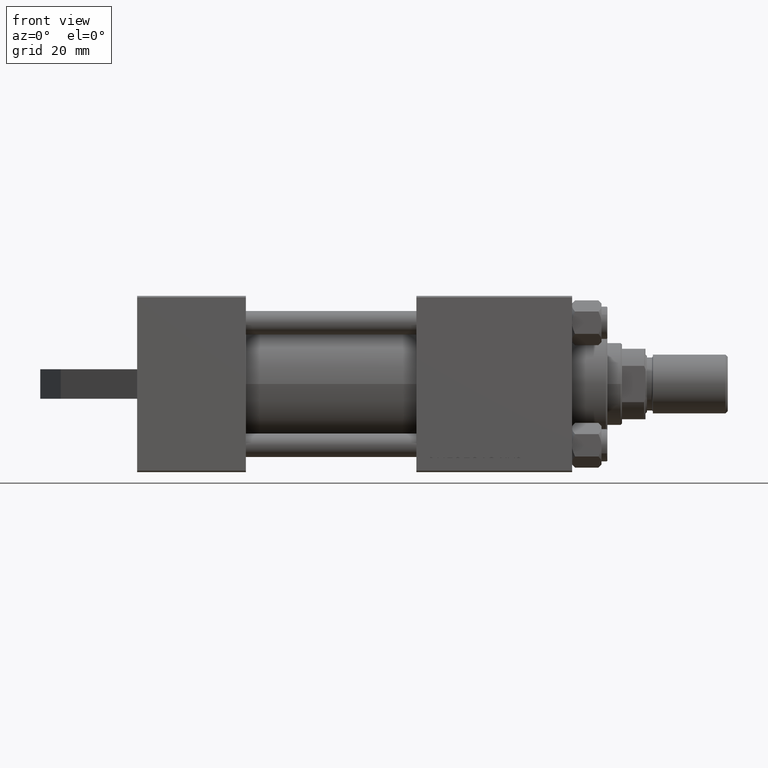
[diagram: clean part render]
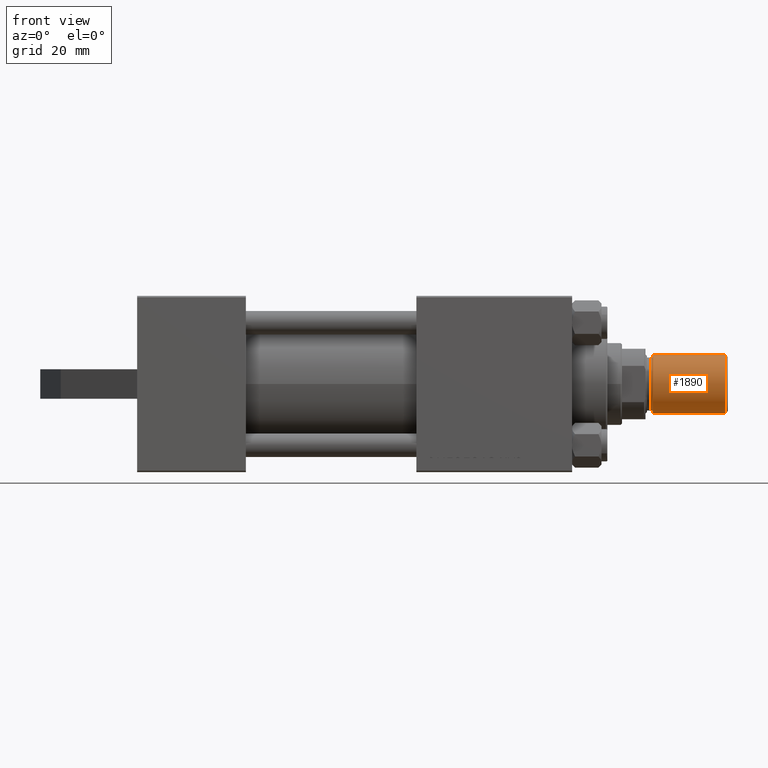
[diagram: same view with one face highlighted and labeled with its STEP entity id]
A machine part, front view. The second image highlights one B-rep face of the part: STEP entity #1890.
In plain terms, the highlighted cylindrical surface (edge-blend (fillet) strip) has radius 10 mm, axis along (1, 0, -0).
Its self-contained STEP definition (entity closure, byte-faithful):
#752 = ORIENTED_EDGE ( 'NONE', *, *, #39334, .F. ) ;
#1149 = VECTOR ( 'NONE', #4427, 1000.000000000000000 ) ;
#1890 = ADVANCED_FACE ( 'NONE', ( #3716 ), #27951, .T. ) ;
#2893 = VERTEX_POINT ( 'NONE', #45643 ) ;
#3168 = CARTESIAN_POINT ( 'NONE',  ( -10.00000000000000000, 0.000000000000000000, 25.50000000000000000 ) ) ;
#3716 = FACE_OUTER_BOUND ( 'NONE', #15270, .T. ) ;
#4427 = DIRECTION ( 'NONE',  ( -0.000000000000000000, -0.000000000000000000, -1.000000000000000000 ) ) ;
#5652 = ORIENTED_EDGE ( 'NONE', *, *, #31484, .T. ) ;
#8504 = DIRECTION ( 'NONE',  ( 0.000000000000000000, 0.000000000000000000, 1.000000000000000000 ) ) ;
#9024 = EDGE_CURVE ( 'NONE', #30100, #26504, #19020, .T. ) ;
#11038 = LINE ( 'NONE', #43256, #1149 ) ;
#13130 = DIRECTION ( 'NONE',  ( -0.000000000000000000, -0.000000000000000000, -1.000000000000000000 ) ) ;
#13672 = AXIS2_PLACEMENT_3D ( 'NONE', #36176, #24416, #42291 ) ;
#14493 = EDGE_CURVE ( 'NONE', #30100, #2893, #11038, .T. ) ;
#15270 = EDGE_LOOP ( 'NONE', ( #752, #26735, #32642, #5652 ) ) ;
#15326 = AXIS2_PLACEMENT_3D ( 'NONE', #35533, #31765, #42124 ) ;
#15348 = VERTEX_POINT ( 'NONE', #22762 ) ;
#16474 = DIRECTION ( 'NONE',  ( 1.000000000000000000, 0.000000000000000000, 0.000000000000000000 ) ) ;
#19020 = CIRCLE ( 'NONE', #46070, 10.00000000000000000 ) ;
#21541 = CARTESIAN_POINT ( 'NONE',  ( 10.00000000000000000, 1.224646799147353256E-15, 25.50000000000000000 ) ) ;
#22762 = CARTESIAN_POINT ( 'NONE',  ( 10.00000000000000000, 1.224646799147353256E-15, 0.8000000000000055955 ) ) ;
#24416 = DIRECTION ( 'NONE',  ( -0.000000000000000000, -0.000000000000000000, -1.000000000000000000 ) ) ;
#24417 = CARTESIAN_POINT ( 'NONE',  ( 10.00000000000000000, 1.224646799147353256E-15, 25.50000000000000000 ) ) ;
#26504 = VERTEX_POINT ( 'NONE', #21541 ) ;
#26735 = ORIENTED_EDGE ( 'NONE', *, *, #9024, .F. ) ;
#27951 = CYLINDRICAL_SURFACE ( 'NONE', #13672, 10.00000000000000000 ) ;
#30100 = VERTEX_POINT ( 'NONE', #3168 ) ;
#31484 = EDGE_CURVE ( 'NONE', #2893, #15348, #43141, .T. ) ;
#31765 = DIRECTION ( 'NONE',  ( -0.000000000000000000, -0.000000000000000000, 1.000000000000000000 ) ) ;
#32642 = ORIENTED_EDGE ( 'NONE', *, *, #14493, .T. ) ;
#34299 = LINE ( 'NONE', #24417, #41111 ) ;
#34354 = CARTESIAN_POINT ( 'NONE',  ( 0.000000000000000000, 0.000000000000000000, 25.50000000000000000 ) ) ;
#35533 = CARTESIAN_POINT ( 'NONE',  ( 0.000000000000000000, 0.000000000000000000, 0.8000000000000055955 ) ) ;
#36176 = CARTESIAN_POINT ( 'NONE',  ( 0.000000000000000000, 0.000000000000000000, 25.50000000000000000 ) ) ;
#39334 = EDGE_CURVE ( 'NONE', #26504, #15348, #34299, .T. ) ;
#41111 = VECTOR ( 'NONE', #13130, 1000.000000000000000 ) ;
#42124 = DIRECTION ( 'NONE',  ( 1.000000000000000000, 0.000000000000000000, 0.000000000000000000 ) ) ;
#42291 = DIRECTION ( 'NONE',  ( -1.000000000000000000, 0.000000000000000000, 0.000000000000000000 ) ) ;
#43141 = CIRCLE ( 'NONE', #15326, 10.00000000000000000 ) ;
#43256 = CARTESIAN_POINT ( 'NONE',  ( -10.00000000000000000, 0.000000000000000000, 25.50000000000000000 ) ) ;
#45643 = CARTESIAN_POINT ( 'NONE',  ( -10.00000000000000000, 0.000000000000000000, 0.8000000000000055955 ) ) ;
#46070 = AXIS2_PLACEMENT_3D ( 'NONE', #34354, #8504, #16474 ) ;